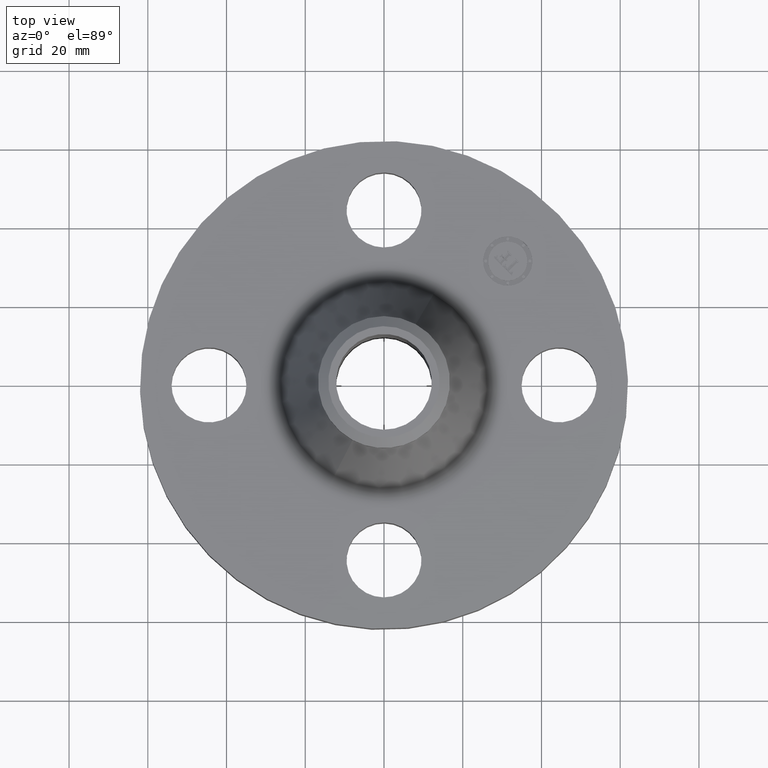
[diagram: clean part render]
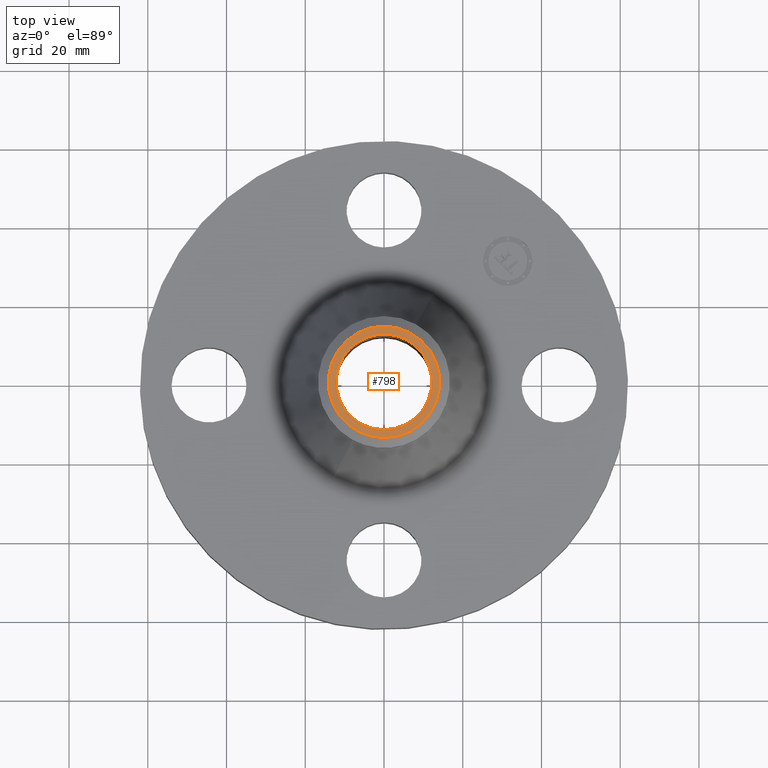
[diagram: same view with one face highlighted and labeled with its STEP entity id]
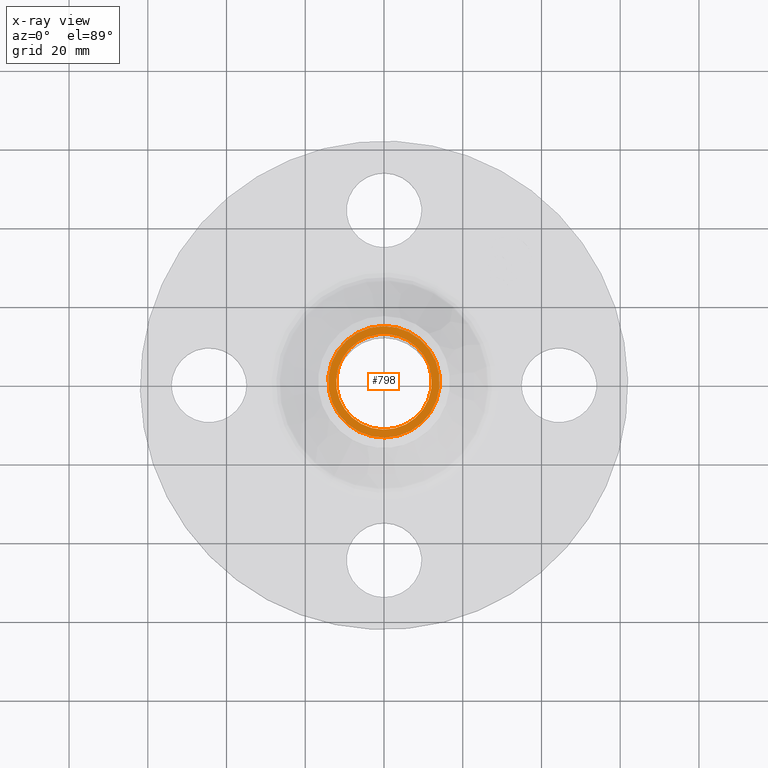
[diagram: x-ray of the same camera — body ghosted, the highlighted face saturated]
A machine part, top view. The second image highlights one B-rep face of the part: STEP entity #798.
The next image is the same camera in x-ray: the body ghosted, the highlighted face saturated — about 0% of this face is hidden behind the body in this view.
In plain terms, the highlighted planar face has unit normal (0, 0, -1).
Its self-contained STEP definition (entity closure, byte-faithful):
#423=AXIS2_PLACEMENT_3D('Circle Axis2P3D',#421,#422,$) ;
#774=AXIS2_PLACEMENT_3D('Plane Axis2P3D',#771,#772,#773) ;
#778=AXIS2_PLACEMENT_3D('Circle Axis2P3D',#776,#777,$) ;
#787=AXIS2_PLACEMENT_3D('Circle Axis2P3D',#785,#786,$) ;
#421=CARTESIAN_POINT('Axis2P3D Location',(0.,0.,2.44)) ;
#425=CARTESIAN_POINT('Vertex',(0.229405120206,0.419923255837,2.44000000001)) ;
#427=CARTESIAN_POINT('Vertex',(-0.229405120206,-0.419923255865,2.44000000001)) ;
#460=CARTESIAN_POINT('Control Point',(-0.229405120223,-0.419923255866,2.44000000001)) ;
#461=CARTESIAN_POINT('Control Point',(-0.295366511008,-0.383888383847,2.44000000001)) ;
#462=CARTESIAN_POINT('Control Point',(-0.354252471218,-0.334902023033,2.44000000001)) ;
#463=CARTESIAN_POINT('Control Point',(-0.402660838744,-0.274806163208,2.44000000001)) ;
#464=CARTESIAN_POINT('Control Point',(-0.473305668442,-0.138871666265,2.44000000001)) ;
#465=CARTESIAN_POINT('Control Point',(-0.48730581617,0.0136828331305,2.44000000001)) ;
#466=CARTESIAN_POINT('Control Point',(-0.479041511111,0.0904069080775,2.44)) ;
#467=CARTESIAN_POINT('Control Point',(-0.432874744661,0.236480550799,2.44)) ;
#468=CARTESIAN_POINT('Control Point',(-0.334902023033,0.354252471218,2.44)) ;
#469=CARTESIAN_POINT('Control Point',(-0.274806163209,0.402660838744,2.44)) ;
#470=CARTESIAN_POINT('Control Point',(-0.138871666265,0.473305668442,2.44)) ;
#471=CARTESIAN_POINT('Control Point',(0.0136828331304,0.48730581617,2.44)) ;
#472=CARTESIAN_POINT('Control Point',(0.0904069080775,0.479041511111,2.44)) ;
#473=CARTESIAN_POINT('Control Point',(0.163443729438,0.455958127886,2.44)) ;
#474=CARTESIAN_POINT('Control Point',(0.229405120223,0.419923255866,2.44)) ;
#771=CARTESIAN_POINT('Axis2P3D Location',(0.,0.660000000003,2.44000000001)) ;
#776=CARTESIAN_POINT('Axis2P3D Location',(-5.24514814784E-017,-1.4013217533E-011,2.44000000001)) ;
#780=CARTESIAN_POINT('Vertex',(0.267155162633,-0.489024244991,2.44000000001)) ;
#782=CARTESIAN_POINT('Vertex',(-0.267155162633,0.489024244991,2.44000000001)) ;
#785=CARTESIAN_POINT('Axis2P3D Location',(3.08536048853E-011,2.84245068427E-012,2.44000000001)) ;
#422=DIRECTION('Axis2P3D Direction',(0.,0.,-0.0393700787402)) ;
#772=DIRECTION('Axis2P3D Direction',(0.,0.,-0.0393700787402)) ;
#773=DIRECTION('Axis2P3D XDirection',(0.0393700787402,0.,0.)) ;
#777=DIRECTION('Axis2P3D Direction',(0.,0.,-0.0393700787402)) ;
#786=DIRECTION('Axis2P3D Direction',(0.,0.,-0.0393700787402)) ;
#791=ORIENTED_EDGE('',*,*,#784,.T.) ;
#792=ORIENTED_EDGE('',*,*,#789,.T.) ;
#795=ORIENTED_EDGE('',*,*,#475,.T.) ;
#796=ORIENTED_EDGE('',*,*,#429,.T.) ;
#797=FACE_BOUND('',#794,.T.) ;
#798=ADVANCED_FACE('PartBody',(#793,#797),#775,.F.) ;
#459=B_SPLINE_CURVE_WITH_KNOTS('',5,(#460,#461,#462,#463,#464,#465,#466,#467,#468,#469,#470,#471,#472,#473,#474),.UNSPECIFIED.,.F.,.U.,(6,3,3,3,6),(-19.0913014763,-9.54565073816,-1.7763568394E-015,9.54565073816,19.0913014763),.UNSPECIFIED.) ;
#424=CIRCLE('generated circle',#423,0.478500000002) ;
#779=CIRCLE('generated circle',#778,0.557240157504) ;
#788=CIRCLE('generated circle',#787,0.557240157504) ;
#429=EDGE_CURVE('',#426,#428,#424,.T.) ;
#475=EDGE_CURVE('',#428,#426,#459,.T.) ;
#784=EDGE_CURVE('',#781,#783,#779,.F.) ;
#789=EDGE_CURVE('',#783,#781,#788,.F.) ;
#790=EDGE_LOOP('',(#791,#792)) ;
#794=EDGE_LOOP('',(#795,#796)) ;
#793=FACE_OUTER_BOUND('',#790,.T.) ;
#775=PLANE('',#774) ;
#426=VERTEX_POINT('',#425) ;
#428=VERTEX_POINT('',#427) ;
#781=VERTEX_POINT('',#780) ;
#783=VERTEX_POINT('',#782) ;